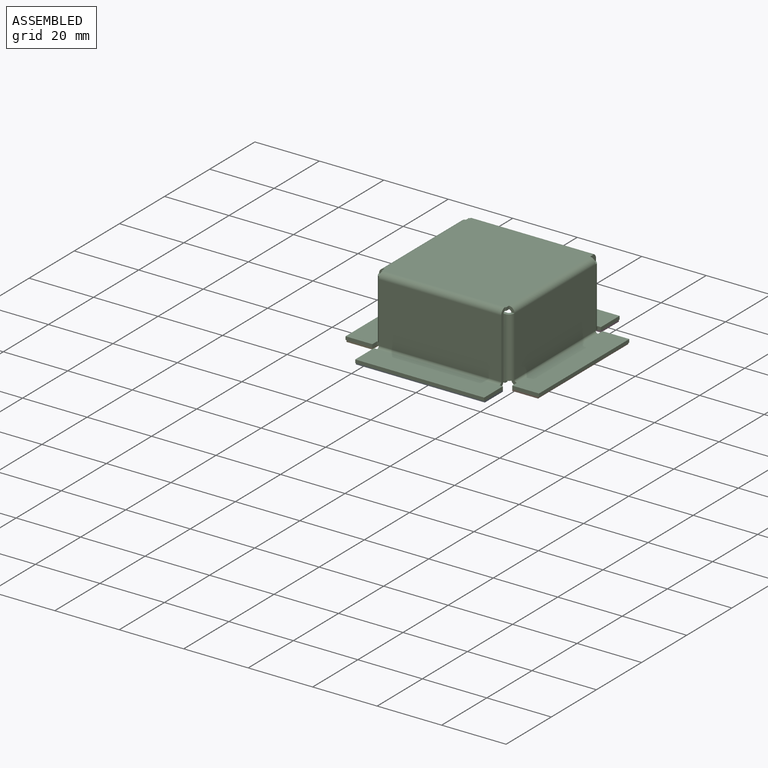
[diagram: assembled view]
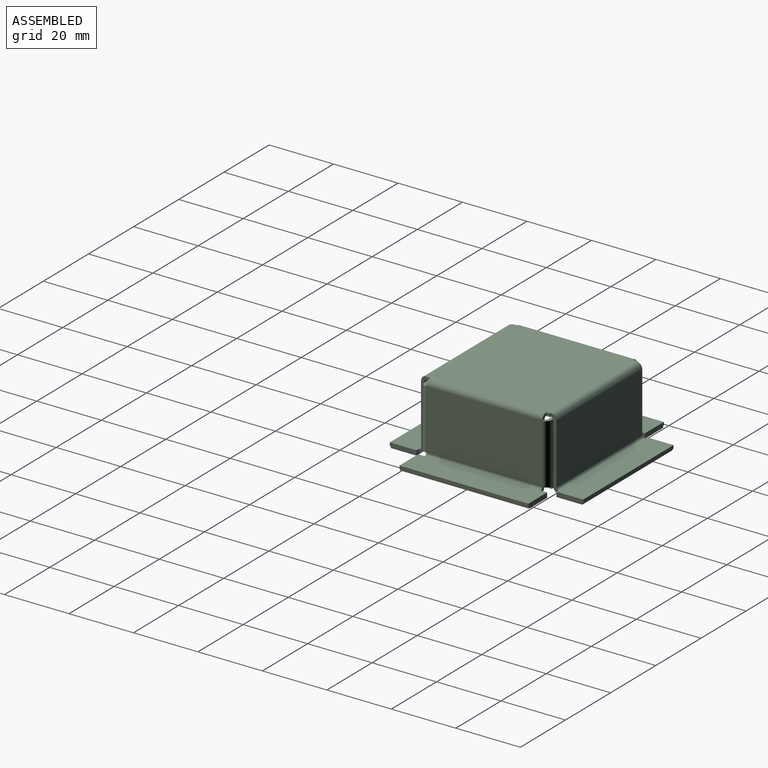
[diagram: assembled view, second angle]
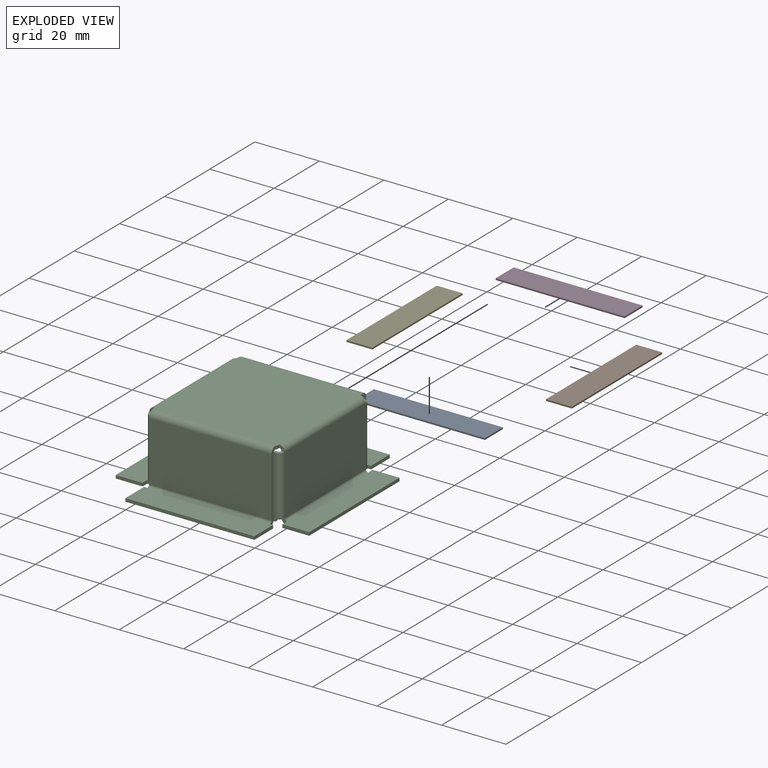
[diagram: exploded view]
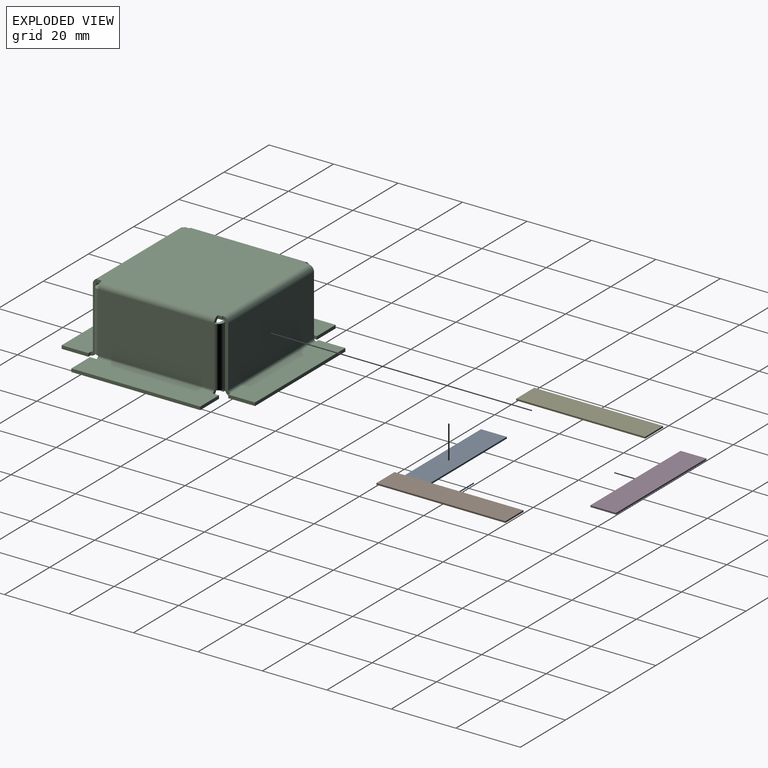
[diagram: exploded view, second angle]
ASSEMBLY  parts=5 mates=12
PART A: 6 faces, bbox 40x8x0.5 mm
  f0: plane 40x0.5mm, normal (0,1,0), area 20mm2, adj f1,f3,f4,f5
  f1: plane 8x0.5mm, normal (-1,0,0), area 4mm2, adj f0,f2,f4,f5
  f2: plane 40x0.5mm, normal (0,-1,0), area 20mm2, adj f1,f3,f4,f5
  f3: plane 8x0.5mm, normal (1,0,0), area 4mm2, adj f0,f2,f4,f5
  f4: plane 40x8mm, normal (0,0,1), area 320mm2, adj f0,f1,f2,f3
  f5: plane 40x8mm, normal (0,0,-1), area 320mm2, adj f0,f1,f2,f3
PART B: same geometry as A
PART C: 122 faces, bbox 60x60x22 mm
  f0: plane 18.6x1mm, normal (1,0,0), area 18.6mm2, adj f2,f3,f108,f118
  f1: plane 18.6x1mm, normal (-1,0,0), area 18.6mm2, adj f2,f3,f107,f119
  f2: plane 38x18.6mm, normal (0,-1,0), area 706.8mm2, adj f0,f1,f109,f121
  f3: plane 38x18.6mm, normal (0,1,0), area 706.8mm2, adj f0,f1,f110,f120
  f4: plane 1x0.3mm, normal (0,-1,0), area 0.3mm2, adj f9,f12,f13,f107
  f5: plane 1.3x1mm, normal (-1,0,0), area 1.3mm2, adj f8,f12,f13,f103
  f6: plane 1.3x1mm, normal (1,0,0), area 1.3mm2, adj f10,f12,f13,f67
  f7: plane 1x0.3mm, normal (0,1,0), area 0.3mm2, adj f11,f12,f13,f30
  f8: plane 1x0.3mm, normal (0,1,0), area 0.3mm2, adj f5,f12,f13,f29
  f9: plane 1.3x1mm, normal (-1,0,0), area 1.3mm2, adj f4,f12,f13,f104
  f10: plane 1x0.3mm, normal (0,-1,0), area 0.3mm2, adj f6,f12,f13,f108
  f11: plane 1.3x1mm, normal (1,0,0), area 1.3mm2, adj f7,f12,f13,f66
  f12: plane 38.6x38.6mm, normal (0,0,1), area 1490mm2, adj f4,f5,f6,f7,f8,f9,f10,f11
  f13: plane 38.6x38.6mm, normal (0,0,-1), area 1490mm2, adj f4,f5,f6,f7,f8,f9,f10,f11
  f14: plane 18.6x1mm, normal (-1,0,0), area 18.6mm2, adj f16,f17,f25,f29
  f15: plane 18.6x1mm, normal (1,0,0), area 18.6mm2, adj f16,f17,f26,f30
  f16: plane 38x18.6mm, normal (0,1,0), area 706.8mm2, adj f14,f15,f28,f31
  f17: plane 38x18.6mm, normal (0,-1,0), area 706.8mm2, adj f14,f15,f27,f32
  f18: plane 1x1mm, normal (0,-1,0), area 1mm2, adj f19,f23,f24,f26
  f19: plane 8.3x1mm, normal (1,0,0), area 8.3mm2, adj f18,f20,f23,f24
  f20: plane 40x1mm, normal (0,1,0), area 40mm2, adj f19,f21,f23,f24
  f21: plane 8.3x1mm, normal (-1,0,0), area 8.3mm2, adj f20,f22,f23,f24
  f22: plane 1x1mm, normal (0,-1,0), area 1mm2, adj f21,f23,f24,f25
  f23: plane 40x8.3mm, normal (0,0,1), area 332mm2, adj f18,f19,f20,f21,f22,f28
  f24: plane 40x8.3mm, normal (0,0,-1), area 332mm2, adj f18,f19,f20,f21,f22,f27
  f25: plane 1.7x1.7mm, normal (-1,0,0), area 1.9mm2, adj f14,f22,f27,f28
  f26: plane 1.7x1.7mm, normal (1,0,0), area 1.9mm2, adj f15,f18,f27,f28
  f27: cylinder r=1.7mm len=38mm, axis (-1,0,0), area 101.5mm2, adj f17,f24,f25,f26
  f28: cylinder r=0.7mm len=38mm, axis (-1,0,0), area 41.8mm2, adj f16,f23,f25,f26
  f29: plane 1.7x1.7mm, normal (-1,0,0), area 1.9mm2, adj f8,f14,f31,f32
  f30: plane 1.7x1.7mm, normal (1,0,0), area 1.9mm2, adj f7,f15,f31,f32
  f31: cylinder r=1.7mm len=38mm, axis (-1,0,0), area 101.5mm2, adj f12,f16,f29,f30
  f32: cylinder r=0.7mm len=38mm, axis (-1,0,0), area 41.8mm2, adj f13,f17,f29,f30
  f33: plane 36x18.6mm, normal (-1,0,0), area 669.6mm2, adj f44,f54,f64,f69
  f34: plane 36x18.6mm, normal (1,0,0), area 669.6mm2, adj f43,f53,f65,f68
  f35: plane 1x0.7mm, normal (1,0,0), area 0.7mm2, adj f37,f39,f40,f41
  f36: plane 19.3x1mm, normal (-1,0,0), area 19.3mm2, adj f37,f38,f39,f40
  f37: plane 16.3x1mm, normal (0,0,-1), area 16.3mm2, adj f35,f36,f39,f40
  f38: plane 16.3x1mm, normal (0,0,1), area 16.3mm2, adj f36,f39,f40,f42
  f39: plane 19.3x16.3mm, normal (0,-1,0), area 314.6mm2, adj f35,f36,f37,f38,f43
  f40: plane 19.3x16.3mm, normal (0,1,0), area 314.6mm2, adj f35,f36,f37,f38,f44
  f41: plane 1.7x1.7mm, normal (0,0,-1), area 1.9mm2, adj f35,f43,f44,f63
  f42: plane 1.7x1.7mm, normal (0,0,1), area 1.9mm2, adj f38,f43,f44,f67
  f43: cylinder r=1.7mm len=18.6mm, axis (0,0,-1), area 49.7mm2, adj f34,f39,f41,f42
  f44: cylinder r=0.7mm len=18.6mm, axis (0,0,-1), area 20.5mm2, adj f33,f40,f41,f42
  f45: plane 19.3x1mm, normal (-1,0,0), area 19.3mm2, adj f46,f48,f49,f50
  f46: plane 16.3x1mm, normal (0,0,1), area 16.3mm2, adj f45,f49,f50,f51
  f47: plane 1x0.7mm, normal (1,0,0), area 0.7mm2, adj f48,f49,f50,f52
  f48: plane 16.3x1mm, normal (0,0,-1), area 16.3mm2, adj f45,f47,f49,f50
  f49: plane 19.3x16.3mm, normal (0,1,0), area 314.6mm2, adj f45,f46,f47,f48,f53
  f50: plane 19.3x16.3mm, normal (0,-1,0), area 314.6mm2, adj f45,f46,f47,f48,f54
  f51: plane 1.7x1.7mm, normal (0,0,1), area 1.9mm2, adj f46,f53,f54,f66
  f52: plane 1.7x1.7mm, normal (0,0,-1), area 1.9mm2, adj f47,f53,f54,f62
  f53: cylinder r=1.7mm len=18.6mm, axis (0,0,1), area 49.7mm2, adj f34,f49,f51,f52
  f54: cylinder r=0.7mm len=18.6mm, axis (0,0,1), area 20.5mm2, adj f33,f50,f51,f52
  f55: plane 2x1mm, normal (-1,0,0), area 2mm2, adj f56,f60,f61,f63
  f56: plane 8.3x1mm, normal (0,-1,0), area 8.3mm2, adj f55,f57,f60,f61
  f57: plane 40x1mm, normal (1,0,0), area 40mm2, adj f56,f58,f60,f61
  f58: plane 8.3x1mm, normal (0,1,0), area 8.3mm2, adj f57,f59,f60,f61
  f59: plane 2x1mm, normal (-1,0,0), area 2mm2, adj f58,f60,f61,f62
  f60: plane 40x8.3mm, normal (0,0,1), area 332mm2, adj f55,f56,f57,f58,f59,f65
  f61: plane 40x8.3mm, normal (0,0,-1), area 332mm2, adj f55,f56,f57,f58,f59,f64
  f62: plane 1.7x1.7mm, normal (0,1,0), area 1.9mm2, adj f52,f59,f64,f65
  f63: plane 1.7x1.7mm, normal (0,-1,0), area 1.9mm2, adj f41,f55,f64,f65
  f64: cylinder r=1.7mm len=36mm, axis (0,1,0), area 96.1mm2, adj f33,f61,f62,f63
  f65: cylinder r=0.7mm len=36mm, axis (0,1,0), area 39.6mm2, adj f34,f60,f62,f63
  f66: plane 1.7x1.7mm, normal (0,1,0), area 1.9mm2, adj f11,f51,f68,f69
  f67: plane 1.7x1.7mm, normal (0,-1,0), area 1.9mm2, adj f6,f42,f68,f69
  f68: cylinder r=1.7mm len=36mm, axis (0,1,0), area 96.1mm2, adj f12,f34,f66,f67
  f69: cylinder r=0.7mm len=36mm, axis (0,1,0), area 39.6mm2, adj f13,f33,f66,f67
  f70: plane 36x18.6mm, normal (1,0,0), area 669.6mm2, adj f81,f91,f101,f106
  f71: plane 36x18.6mm, normal (-1,0,0), area 669.6mm2, adj f80,f90,f102,f105
  f72: plane 19.3x1mm, normal (1,0,0), area 19.3mm2, adj f73,f75,f76,f77
  f73: plane 16.3x1mm, normal (0,0,1), area 16.3mm2, adj f72,f76,f77,f78
  f74: plane 1x0.7mm, normal (-1,0,0), area 0.7mm2, adj f75,f76,f77,f79
  f75: plane 16.3x1mm, normal (0,0,-1), area 16.3mm2, adj f72,f74,f76,f77
  f76: plane 19.3x16.3mm, normal (0,-1,0), area 314.6mm2, adj f72,f73,f74,f75,f80
  f77: plane 19.3x16.3mm, normal (0,1,0), area 314.6mm2, adj f72,f73,f74,f75,f81
  f78: plane 1.7x1.7mm, normal (0,0,1), area 1.9mm2, adj f73,f80,f81,f104
  f79: plane 1.7x1.7mm, normal (0,0,-1), area 1.9mm2, adj f74,f80,f81,f99
  f80: cylinder r=1.7mm len=18.6mm, axis (0,0,1), area 49.7mm2, adj f71,f76,f78,f79
  f81: cylinder r=0.7mm len=18.6mm, axis (0,0,1), area 20.5mm2, adj f70,f77,f78,f79
  f82: plane 1x0.7mm, normal (-1,0,0), area 0.7mm2, adj f84,f86,f87,f88
  f83: plane 19.3x1mm, normal (1,0,0), area 19.3mm2, adj f84,f85,f86,f87
  f84: plane 16.3x1mm, normal (0,0,-1), area 16.3mm2, adj f82,f83,f86,f87
  f85: plane 16.3x1mm, normal (0,0,1), area 16.3mm2, adj f83,f86,f87,f89
  f86: plane 19.3x16.3mm, normal (0,1,0), area 314.6mm2, adj f82,f83,f84,f85,f90
  f87: plane 19.3x16.3mm, normal (0,-1,0), area 314.6mm2, adj f82,f83,f84,f85,f91
  f88: plane 1.7x1.7mm, normal (0,0,-1), area 1.9mm2, adj f82,f90,f91,f100
  f89: plane 1.7x1.7mm, normal (0,0,1), area 1.9mm2, adj f85,f90,f91,f103
  f90: cylinder r=1.7mm len=18.6mm, axis (0,0,-1), area 49.7mm2, adj f71,f86,f88,f89
  f91: cylinder r=0.7mm len=18.6mm, axis (0,0,-1), area 20.5mm2, adj f70,f87,f88,f89
  f92: plane 2x1mm, normal (1,0,0), area 2mm2, adj f93,f97,f98,f100
  f93: plane 8.3x1mm, normal (0,1,0), area 8.3mm2, adj f92,f94,f97,f98
  f94: plane 40x1mm, normal (-1,0,0), area 40mm2, adj f93,f95,f97,f98
  f95: plane 8.3x1mm, normal (0,-1,0), area 8.3mm2, adj f94,f96,f97,f98
  f96: plane 2x1mm, normal (1,0,0), area 2mm2, adj f95,f97,f98,f99
  f97: plane 40x8.3mm, normal (0,0,1), area 332mm2, adj f92,f93,f94,f95,f96,f102
  f98: plane 40x8.3mm, normal (0,0,-1), area 332mm2, adj f92,f93,f94,f95,f96,f101
  f99: plane 1.7x1.7mm, normal (0,-1,0), area 1.9mm2, adj f79,f96,f101,f102
  f100: plane 1.7x1.7mm, normal (0,1,0), area 1.9mm2, adj f88,f92,f101,f102
  f101: cylinder r=1.7mm len=36mm, axis (0,-1,0), area 96.1mm2, adj f70,f98,f99,f100
  f102: cylinder r=0.7mm len=36mm, axis (0,-1,0), area 39.6mm2, adj f71,f97,f99,f100
  f103: plane 1.7x1.7mm, normal (0,1,0), area 1.9mm2, adj f5,f89,f105,f106
  f104: plane 1.7x1.7mm, normal (0,-1,0), area 1.9mm2, adj f9,f78,f105,f106
  f105: cylinder r=1.7mm len=36mm, axis (0,1,0), area 96.1mm2, adj f12,f71,f103,f104
  f106: cylinder r=0.7mm len=36mm, axis (0,1,0), area 39.6mm2, adj f13,f70,f103,f104
  f107: plane 1.7x1.7mm, normal (-1,0,0), area 1.9mm2, adj f1,f4,f109,f110
  f108: plane 1.7x1.7mm, normal (1,0,0), area 1.9mm2, adj f0,f10,f109,f110
  f109: cylinder r=1.7mm len=38mm, axis (-1,0,0), area 101.5mm2, adj f2,f12,f107,f108
  f110: cylinder r=0.7mm len=38mm, axis (-1,0,0), area 41.8mm2, adj f3,f13,f107,f108
  f111: plane 1x1mm, normal (0,1,0), area 1mm2, adj f112,f116,f117,f119
  f112: plane 8.3x1mm, normal (-1,0,0), area 8.3mm2, adj f111,f113,f116,f117
  f113: plane 40x1mm, normal (0,-1,0), area 40mm2, adj f112,f114,f116,f117
  f114: plane 8.3x1mm, normal (1,0,0), area 8.3mm2, adj f113,f115,f116,f117
  f115: plane 1x1mm, normal (0,1,0), area 1mm2, adj f114,f116,f117,f118
  f116: plane 40x8.3mm, normal (0,0,1), area 332mm2, adj f111,f112,f113,f114,f115,f121
  f117: plane 40x8.3mm, normal (0,0,-1), area 332mm2, adj f111,f112,f113,f114,f115,f120
  f118: plane 1.7x1.7mm, normal (1,0,0), area 1.9mm2, adj f0,f115,f120,f121
  f119: plane 1.7x1.7mm, normal (-1,0,0), area 1.9mm2, adj f1,f111,f120,f121
  f120: cylinder r=1.7mm len=38mm, axis (1,0,0), area 101.5mm2, adj f3,f117,f118,f119
  f121: cylinder r=0.7mm len=38mm, axis (1,0,0), area 41.8mm2, adj f2,f116,f118,f119
PART D: same geometry as A
PART E: same geometry as A
PLACE A t=(-27.71,-31.6,1.71)mm
PLACE B rot(axis=(0,0,-1),90deg) t=(-2.01,-5.9,1.71)mm
PLACE C t=(-27.71,-5.9,3.21)mm fixed
PLACE D t=(-27.71,19.8,1.71)mm
PLACE E rot(axis=(0,0,-1),90deg) t=(-53.41,-5.9,1.71)mm
MATE planar C.f96 <-> E.f0  axis (1,0,0) through (-49.41,-24.9,2.71)mm
MATE planar C.f55 <-> B.f2  axis (-1,0,0) through (-6.01,-24.9,2.71)mm
MATE planar C.f24 <-> D.f4  axis (0,0,-1) through (-27.71,19.95,2.21)mm
MATE planar C.f117 <-> A.f4  axis (0,0,-1) through (-27.71,-31.75,2.21)mm
MATE planar C.f18 <-> D.f2  axis (0,-1,0) through (-8.21,15.8,2.71)mm
MATE planar D.f3 <-> C.f19  axis (1,0,0) through (-7.71,19.8,1.96)mm
MATE planar C.f61 <-> B.f4  axis (0,0,-1) through (-1.86,-5.9,2.21)mm
MATE planar C.f98 <-> E.f4  axis (0,0,-1) through (-53.56,-5.9,2.21)mm
MATE planar C.f112 <-> A.f1  axis (-1,0,0) through (-47.71,-31.75,2.71)mm
MATE planar C.f111 <-> A.f0  axis (0,1,0) through (-47.21,-27.6,2.71)mm
MATE planar C.f95 <-> E.f3  axis (0,-1,0) through (-53.56,-25.9,3.21)mm
MATE planar C.f56 <-> B.f3  axis (0,-1,0) through (-1.86,-25.9,2.71)mm
